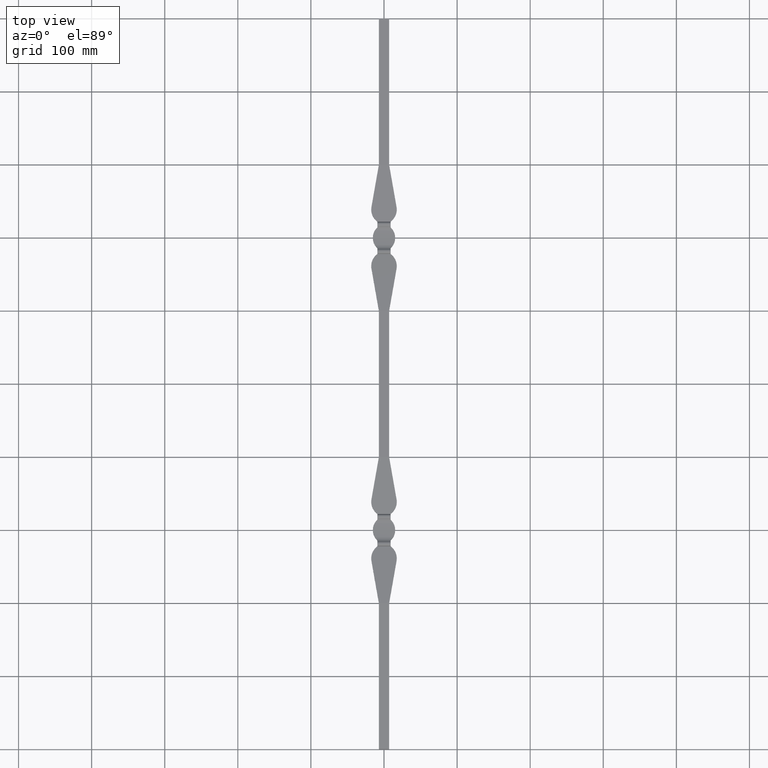
[diagram: clean part render]
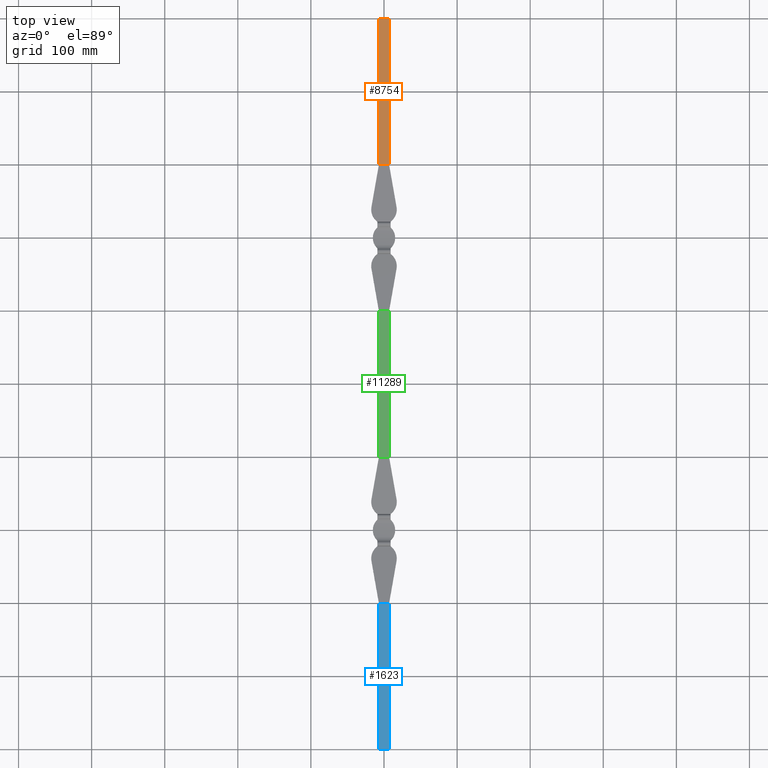
[diagram: same view with three faces highlighted in distinct colors, each labeled with its STEP entity id]
A machine part, top view with three faces highlighted in distinct colors.
Their STEP definitions:

[orange] entity #8754 — the highlighted planar face has unit normal (0, 0, -1).
#36 = DIRECTION ( 'NONE',  ( 0.000000000000000000, 0.000000000000000000, -1.000000000000000000 ) ) ;
#335 = CARTESIAN_POINT ( 'NONE',  ( -7.000000000000000888, 300.0000000000000000, 7.000000000000000000 ) ) ;
#1214 = VECTOR ( 'NONE', #10396, 1000.000000000000000 ) ;
#1979 = VECTOR ( 'NONE', #6304, 1000.000000000000000 ) ;
#2511 = AXIS2_PLACEMENT_3D ( 'NONE', #9736, #36, #3270 ) ;
#3270 = DIRECTION ( 'NONE',  ( -1.000000000000000000, 0.000000000000000000, -0.000000000000000000 ) ) ;
#3407 = CARTESIAN_POINT ( 'NONE',  ( -7.000000000000000888, 100.0000000000000000, 7.000000000000000000 ) ) ;
#3490 = LINE ( 'NONE', #12148, #4139 ) ;
#3962 = EDGE_CURVE ( 'NONE', #5929, #9271, #3490, .T. ) ;
#4139 = VECTOR ( 'NONE', #9935, 1000.000000000000000 ) ;
#4802 = LINE ( 'NONE', #12477, #13686 ) ;
#5067 = EDGE_CURVE ( 'NONE', #9271, #12995, #4802, .T. ) ;
#5929 = VERTEX_POINT ( 'NONE', #335 ) ;
#6038 = FACE_OUTER_BOUND ( 'NONE', #10592, .T. ) ;
#6304 = DIRECTION ( 'NONE',  ( -0.000000000000000000, -1.000000000000000000, -0.000000000000000000 ) ) ;
#7002 = ORIENTED_EDGE ( 'NONE', *, *, #7581, .T. ) ;
#7303 = CARTESIAN_POINT ( 'NONE',  ( 7.000000000000000888, 100.0000000000000000, 7.000000000000000000 ) ) ;
#7581 = EDGE_CURVE ( 'NONE', #8917, #12995, #12638, .T. ) ;
#7667 = LINE ( 'NONE', #13726, #1979 ) ;
#7738 = ORIENTED_EDGE ( 'NONE', *, *, #5067, .F. ) ;
#8754 = ADVANCED_FACE ( 'NONE', ( #6038 ), #11841, .F. ) ;
#8917 = VERTEX_POINT ( 'NONE', #3407 ) ;
#9271 = VERTEX_POINT ( 'NONE', #9668 ) ;
#9495 = ORIENTED_EDGE ( 'NONE', *, *, #3962, .F. ) ;
#9668 = CARTESIAN_POINT ( 'NONE',  ( 6.999999999999999112, 300.0000000000000000, 7.000000000000000000 ) ) ;
#9736 = CARTESIAN_POINT ( 'NONE',  ( -7.000000000000000888, 619.7989898732232632, 7.000000000000000000 ) ) ;
#9935 = DIRECTION ( 'NONE',  ( 1.000000000000000000, -0.000000000000000000, 0.000000000000000000 ) ) ;
#10396 = DIRECTION ( 'NONE',  ( 1.000000000000000000, 0.000000000000000000, 0.000000000000000000 ) ) ;
#10487 = CARTESIAN_POINT ( 'NONE',  ( -7.000000000000000888, 100.0000000000000000, 7.000000000000000000 ) ) ;
#10592 = EDGE_LOOP ( 'NONE', ( #9495, #12420, #7002, #7738 ) ) ;
#11435 = EDGE_CURVE ( 'NONE', #5929, #8917, #7667, .T. ) ;
#11841 = PLANE ( 'NONE',  #2511 ) ;
#12148 = CARTESIAN_POINT ( 'NONE',  ( -7.000000000000000888, 300.0000000000000000, 7.000000000000000000 ) ) ;
#12420 = ORIENTED_EDGE ( 'NONE', *, *, #11435, .T. ) ;
#12477 = CARTESIAN_POINT ( 'NONE',  ( 7.000000000000000000, 619.7989898732232632, 7.000000000000000000 ) ) ;
#12638 = LINE ( 'NONE', #10487, #1214 ) ;
#12995 = VERTEX_POINT ( 'NONE', #7303 ) ;
#13437 = DIRECTION ( 'NONE',  ( -0.000000000000000000, -1.000000000000000000, -0.000000000000000000 ) ) ;
#13686 = VECTOR ( 'NONE', #13437, 1000.000000000000000 ) ;
#13726 = CARTESIAN_POINT ( 'NONE',  ( -7.000000000000000888, 619.7989898732232632, 7.000000000000000000 ) ) ;

[blue] entity #1623 — the highlighted planar face has unit normal (-0, 0, -1).
#374 = CARTESIAN_POINT ( 'NONE',  ( -7.000000000000000888, -1019.798989873223150, 7.000000000000000000 ) ) ;
#472 = VERTEX_POINT ( 'NONE', #8868 ) ;
#742 = LINE ( 'NONE', #10663, #8954 ) ;
#1294 = LINE ( 'NONE', #374, #6646 ) ;
#1310 = DIRECTION ( 'NONE',  ( -0.000000000000000000, 0.000000000000000000, -1.000000000000000000 ) ) ;
#1623 = ADVANCED_FACE ( 'NONE', ( #6058 ), #9924, .F. ) ;
#1840 = VERTEX_POINT ( 'NONE', #7797 ) ;
#2014 = LINE ( 'NONE', #10288, #3198 ) ;
#3122 = DIRECTION ( 'NONE',  ( -0.000000000000000000, 1.000000000000000000, -0.000000000000000000 ) ) ;
#3198 = VECTOR ( 'NONE', #9207, 1000.000000000000000 ) ;
#3772 = AXIS2_PLACEMENT_3D ( 'NONE', #4563, #1310, #4461 ) ;
#4461 = DIRECTION ( 'NONE',  ( -1.000000000000000000, -0.000000000000000000, 0.000000000000000000 ) ) ;
#4563 = CARTESIAN_POINT ( 'NONE',  ( -7.000000000000000888, -1019.798989873223150, 7.000000000000000000 ) ) ;
#5466 = VERTEX_POINT ( 'NONE', #10410 ) ;
#6058 = FACE_OUTER_BOUND ( 'NONE', #12133, .T. ) ;
#6411 = DIRECTION ( 'NONE',  ( 1.000000000000000000, 0.000000000000000000, 0.000000000000000000 ) ) ;
#6646 = VECTOR ( 'NONE', #7862, 1000.000000000000000 ) ;
#7797 = CARTESIAN_POINT ( 'NONE',  ( -7.000000000000000888, -500.0000000000000000, 7.000000000000000000 ) ) ;
#7862 = DIRECTION ( 'NONE',  ( -0.000000000000000000, 1.000000000000000000, -0.000000000000000000 ) ) ;
#8359 = LINE ( 'NONE', #11834, #12233 ) ;
#8868 = CARTESIAN_POINT ( 'NONE',  ( -7.000000000000000888, -700.0000000000000000, 7.000000000000000000 ) ) ;
#8954 = VECTOR ( 'NONE', #6411, 1000.000000000000000 ) ;
#9207 = DIRECTION ( 'NONE',  ( 1.000000000000000000, 0.000000000000000000, 0.000000000000000000 ) ) ;
#9241 = ORIENTED_EDGE ( 'NONE', *, *, #13699, .T. ) ;
#9924 = PLANE ( 'NONE',  #3772 ) ;
#10288 = CARTESIAN_POINT ( 'NONE',  ( -7.000000000000000888, -700.0000000000000000, 7.000000000000000000 ) ) ;
#10410 = CARTESIAN_POINT ( 'NONE',  ( 6.999999999999999112, -700.0000000000000000, 7.000000000000000000 ) ) ;
#10663 = CARTESIAN_POINT ( 'NONE',  ( -7.000000000000000888, -500.0000000000000000, 7.000000000000000000 ) ) ;
#11072 = EDGE_CURVE ( 'NONE', #5466, #13014, #8359, .T. ) ;
#11768 = ORIENTED_EDGE ( 'NONE', *, *, #12735, .F. ) ;
#11834 = CARTESIAN_POINT ( 'NONE',  ( 7.000000000000000000, -1019.798989873223150, 7.000000000000000000 ) ) ;
#12133 = EDGE_LOOP ( 'NONE', ( #13732, #13375, #11768, #9241 ) ) ;
#12233 = VECTOR ( 'NONE', #3122, 1000.000000000000000 ) ;
#12735 = EDGE_CURVE ( 'NONE', #472, #1840, #1294, .T. ) ;
#12870 = CARTESIAN_POINT ( 'NONE',  ( 7.000000000000000888, -500.0000000000000000, 7.000000000000000000 ) ) ;
#13014 = VERTEX_POINT ( 'NONE', #12870 ) ;
#13052 = EDGE_CURVE ( 'NONE', #1840, #13014, #742, .T. ) ;
#13375 = ORIENTED_EDGE ( 'NONE', *, *, #13052, .F. ) ;
#13699 = EDGE_CURVE ( 'NONE', #472, #5466, #2014, .T. ) ;
#13732 = ORIENTED_EDGE ( 'NONE', *, *, #11072, .T. ) ;

[green] entity #11289 — the highlighted planar face has unit normal (0, 0, -1).
#368 = VERTEX_POINT ( 'NONE', #2850 ) ;
#762 = ORIENTED_EDGE ( 'NONE', *, *, #7687, .F. ) ;
#843 = VECTOR ( 'NONE', #4407, 1000.000000000000000 ) ;
#1443 = DIRECTION ( 'NONE',  ( -1.000000000000000000, 0.000000000000000000, 0.000000000000000000 ) ) ;
#1488 = CARTESIAN_POINT ( 'NONE',  ( 0.000000000000000000, -100.0000000000000000, 7.000000000000000000 ) ) ;
#1734 = ORIENTED_EDGE ( 'NONE', *, *, #8835, .F. ) ;
#1961 = DIRECTION ( 'NONE',  ( -1.000000000000000000, 0.000000000000000000, 0.000000000000000000 ) ) ;
#2044 = VECTOR ( 'NONE', #1961, 1000.000000000000000 ) ;
#2538 = AXIS2_PLACEMENT_3D ( 'NONE', #7061, #3903, #2883 ) ;
#2771 = EDGE_CURVE ( 'NONE', #368, #12831, #13048, .T. ) ;
#2850 = CARTESIAN_POINT ( 'NONE',  ( 7.000000000000000888, -300.0000000000000000, 7.000000000000000000 ) ) ;
#2883 = DIRECTION ( 'NONE',  ( -1.000000000000000000, 0.000000000000000000, 0.000000000000000000 ) ) ;
#3226 = CARTESIAN_POINT ( 'NONE',  ( -7.000000000000000888, -99.99999999999997158, 7.000000000000000000 ) ) ;
#3573 = LINE ( 'NONE', #1488, #10121 ) ;
#3903 = DIRECTION ( 'NONE',  ( 0.000000000000000000, 0.000000000000000000, -1.000000000000000000 ) ) ;
#4407 = DIRECTION ( 'NONE',  ( 4.625929269271485322E-15, 1.000000000000000000, -0.000000000000000000 ) ) ;
#4747 = ORIENTED_EDGE ( 'NONE', *, *, #6974, .T. ) ;
#5173 = VECTOR ( 'NONE', #11213, 1000.000000000000000 ) ;
#5470 = FACE_OUTER_BOUND ( 'NONE', #10005, .T. ) ;
#6055 = ORIENTED_EDGE ( 'NONE', *, *, #2771, .T. ) ;
#6073 = LINE ( 'NONE', #7622, #2044 ) ;
#6528 = LINE ( 'NONE', #9642, #843 ) ;
#6974 = EDGE_CURVE ( 'NONE', #12831, #8828, #3573, .T. ) ;
#7033 = CARTESIAN_POINT ( 'NONE',  ( 7.000000000000000888, -100.0000000000000284, 7.000000000000000000 ) ) ;
#7061 = CARTESIAN_POINT ( 'NONE',  ( 6.999999999998521183, -419.7989898732233769, 7.000000000000000000 ) ) ;
#7622 = CARTESIAN_POINT ( 'NONE',  ( 0.000000000000000000, -300.0000000000000568, 7.000000000000000000 ) ) ;
#7687 = EDGE_CURVE ( 'NONE', #368, #10944, #6073, .T. ) ;
#8828 = VERTEX_POINT ( 'NONE', #3226 ) ;
#8835 = EDGE_CURVE ( 'NONE', #10944, #8828, #6528, .T. ) ;
#9642 = CARTESIAN_POINT ( 'NONE',  ( -7.000000000001480593, -419.7989898732233200, 7.000000000000000000 ) ) ;
#10005 = EDGE_LOOP ( 'NONE', ( #1734, #762, #6055, #4747 ) ) ;
#10121 = VECTOR ( 'NONE', #1443, 1000.000000000000000 ) ;
#10139 = CARTESIAN_POINT ( 'NONE',  ( 6.999999999998521183, -419.7989898732233769, 7.000000000000000000 ) ) ;
#10944 = VERTEX_POINT ( 'NONE', #12747 ) ;
#11213 = DIRECTION ( 'NONE',  ( 4.625929269271485322E-15, 1.000000000000000000, -0.000000000000000000 ) ) ;
#11289 = ADVANCED_FACE ( 'NONE', ( #5470 ), #13467, .F. ) ;
#12747 = CARTESIAN_POINT ( 'NONE',  ( -7.000000000000000888, -300.0000000000000568, 7.000000000000000000 ) ) ;
#12831 = VERTEX_POINT ( 'NONE', #7033 ) ;
#13048 = LINE ( 'NONE', #10139, #5173 ) ;
#13467 = PLANE ( 'NONE',  #2538 ) ;